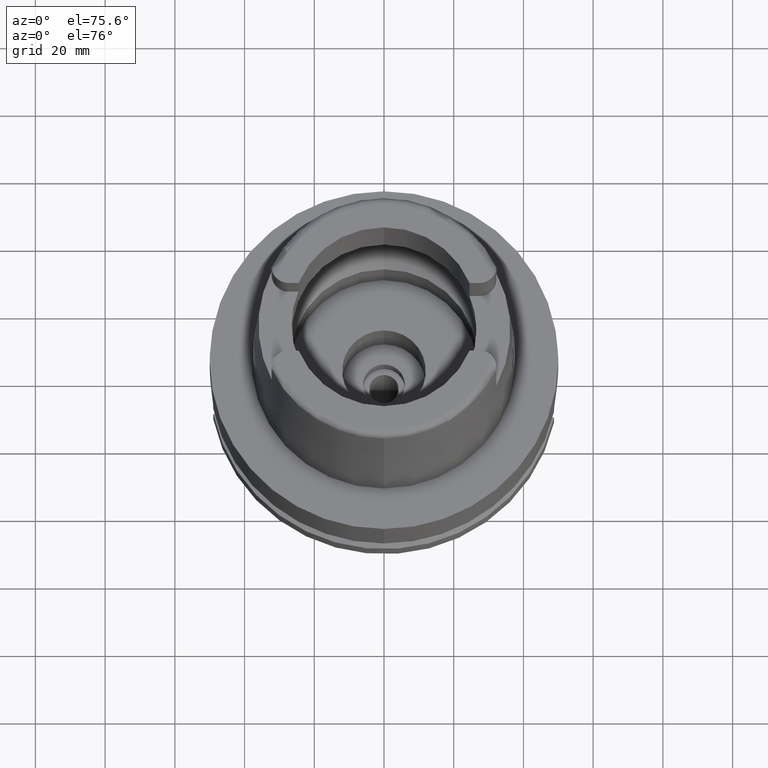
[diagram: clean part render]
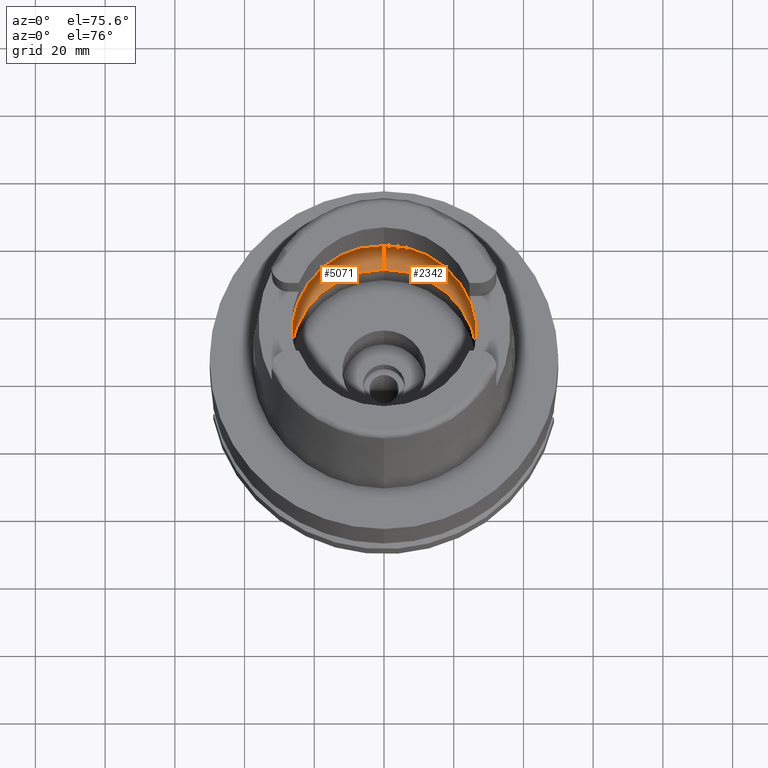
[diagram: same view with one multi-face feature highlighted, each face labeled with its STEP entity id]
A machine part, auxiliary view. The highlighted faces form ONE feature: a constant-radius fillet chain: 2 tangent blend faces with common blend radius 12 mm. The faces share edges in the B-rep.
Their STEP definitions:
[1] entity #2342 (Torus):
#111 = CARTESIAN_POINT ( 'NONE',  ( 31.40918884336000616, 2.390158196043999705, 9.496624327025999790 ) ) ;
#149 = CARTESIAN_POINT ( 'NONE',  ( 0.0000000000000000000, 0.0000000000000000000, 9.496624327025999790 ) ) ;
#151 = CARTESIAN_POINT ( 'NONE',  ( 0.0000000000000000000, 26.89999999999999858, 0.04993178413041000213 ) ) ;
#337 = AXIS2_PLACEMENT_3D ( 'NONE', #4973, #3682, #1531 ) ;
#414 = AXIS2_PLACEMENT_3D ( 'NONE', #149, #4528, #4978 ) ;
#427 = CIRCLE ( 'NONE', #337, 31.49999999999998934 ) ;
#437 = CARTESIAN_POINT ( 'NONE',  ( 31.48971910754000447, 0.0000000000000000000, 9.000000000000000000 ) ) ;
#488 = CARTESIAN_POINT ( 'NONE',  ( 31.48971910753999026, -0.8697454017312684638, 8.999999999999998224 ) ) ;
#686 = AXIS2_PLACEMENT_3D ( 'NONE', #2754, #3653, #4950 ) ;
#802 = EDGE_CURVE ( 'NONE', #5139, #970, #427, .T. ) ;
#970 = VERTEX_POINT ( 'NONE', #4045 ) ;
#1090 = VERTEX_POINT ( 'NONE', #111 ) ;
#1138 = CARTESIAN_POINT ( 'NONE',  ( 31.48971910753999026, 0.8697454017787721314, 9.000000000000001776 ) ) ;
#1197 = CARTESIAN_POINT ( 'NONE',  ( 31.48971910754000447, 0.0000000000000000000, 9.000000000000000000 ) ) ;
#1209 = VERTEX_POINT ( 'NONE', #2869 ) ;
#1305 = DIRECTION ( 'NONE',  ( 0.0000000000000000000, 0.0000000000000000000, 1.000000000000000000 ) ) ;
#1312 = CIRCLE ( 'NONE', #2216, 31.50000000000000000 ) ;
#1426 = CARTESIAN_POINT ( 'NONE',  ( 31.48971910754000447, 0.0000000000000000000, 9.000000000000000000 ) ) ;
#1445 = EDGE_CURVE ( 'NONE', #3564, #1090, #1312, .T. ) ;
#1446 = ORIENTED_EDGE ( 'NONE', *, *, #4504, .F. ) ;
#1531 = DIRECTION ( 'NONE',  ( 0.9971171061384295209, -0.07587803796965221503, 0.0000000000000000000 ) ) ;
#1586 = CIRCLE ( 'NONE', #686, 11.99999999999999822 ) ;
#1894 = ORIENTED_EDGE ( 'NONE', *, *, #3830, .T. ) ;
#1920 = EDGE_CURVE ( 'NONE', #4275, #5139, #3529, .T. ) ;
#1950 = CIRCLE ( 'NONE', #4474, 11.99999999999999822 ) ;
#2015 = CARTESIAN_POINT ( 'NONE',  ( 31.40918884336000616, 2.390158196043999705, 9.496624327025999790 ) ) ;
#2148 = ORIENTED_EDGE ( 'NONE', *, *, #802, .F. ) ;
#2183 = CARTESIAN_POINT ( 'NONE',  ( 0.0000000000000000000, 0.0000000000000000000, 0.04993178413041000213 ) ) ;
#2216 = AXIS2_PLACEMENT_3D ( 'NONE', #3221, #2738, #4455 ) ;
#2253 = CARTESIAN_POINT ( 'NONE',  ( 31.46287568614665986, -1.684656699965325632, 9.190219625007294724 ) ) ;
#2339 = EDGE_CURVE ( 'NONE', #4079, #3564, #1586, .T. ) ;
#2342 = ADVANCED_FACE ( 'NONE', ( #4471 ), #2855, .F. ) ;
#2738 = DIRECTION ( 'NONE',  ( 0.0000000000000000000, 0.0000000000000000000, -1.000000000000000000 ) ) ;
#2754 = CARTESIAN_POINT ( 'NONE',  ( 0.0000000000000000000, 19.50000000000000000, 9.496624327025999790 ) ) ;
#2775 = ORIENTED_EDGE ( 'NONE', *, *, #2861, .F. ) ;
#2855 = TOROIDAL_SURFACE ( 'NONE', #414, 19.50000000000000000, 12.00000000000000000 ) ;
#2861 = EDGE_CURVE ( 'NONE', #1090, #4275, #3984, .T. ) ;
#2869 = CARTESIAN_POINT ( 'NONE',  ( 0.0000000000000000000, -26.89999999999999858, 0.04993178413040000319 ) ) ;
#2942 = CARTESIAN_POINT ( 'NONE',  ( 0.0000000000000000000, -19.50000000000000000, 9.496624327025999790 ) ) ;
#3104 = ORIENTED_EDGE ( 'NONE', *, *, #1445, .F. ) ;
#3124 = CARTESIAN_POINT ( 'NONE',  ( 31.40918884336000616, -2.390158196043999705, 9.496624327025999790 ) ) ;
#3221 = CARTESIAN_POINT ( 'NONE',  ( 0.0000000000000000000, 0.0000000000000000000, 9.496624327025999790 ) ) ;
#3529 = B_SPLINE_CURVE_WITH_KNOTS ( 'NONE', 3,
 ( #1426, #488, #2253, #3124 ),
 .UNSPECIFIED., .F., .F.,
 ( 4, 4 ),
 ( 0.0000000000000000000, 1.000000000000000000 ),
 .UNSPECIFIED. ) ;
#3564 = VERTEX_POINT ( 'NONE', #3975 ) ;
#3653 = DIRECTION ( 'NONE',  ( 1.000000000000000000, 0.0000000000000000000, 0.0000000000000000000 ) ) ;
#3682 = DIRECTION ( 'NONE',  ( 0.0000000000000000000, 0.0000000000000000000, -1.000000000000000000 ) ) ;
#3819 = DIRECTION ( 'NONE',  ( 0.0000000000000000000, -1.000000000000000000, 0.0000000000000000000 ) ) ;
#3830 = EDGE_CURVE ( 'NONE', #1209, #970, #1950, .T. ) ;
#3836 = DIRECTION ( 'NONE',  ( -1.000000000000000000, 0.0000000000000000000, 0.0000000000000000000 ) ) ;
#3975 = CARTESIAN_POINT ( 'NONE',  ( 0.0000000000000000000, 31.50000000000000000, 9.496624327025999790 ) ) ;
#3984 = B_SPLINE_CURVE_WITH_KNOTS ( 'NONE', 3,
 ( #2015, #4633, #1138, #1197 ),
 .UNSPECIFIED., .F., .F.,
 ( 4, 4 ),
 ( 0.0000000000000000000, 1.000000000000000000 ),
 .UNSPECIFIED. ) ;
#4026 = CIRCLE ( 'NONE', #5475, 26.89999999999999858 ) ;
#4045 = CARTESIAN_POINT ( 'NONE',  ( 0.0000000000000000000, -31.50000000000000000, 9.496624327025999790 ) ) ;
#4079 = VERTEX_POINT ( 'NONE', #151 ) ;
#4275 = VERTEX_POINT ( 'NONE', #437 ) ;
#4455 = DIRECTION ( 'NONE',  ( 0.0000000000000000000, 1.000000000000000000, 0.0000000000000000000 ) ) ;
#4471 = FACE_OUTER_BOUND ( 'NONE', #5289, .T. ) ;
#4474 = AXIS2_PLACEMENT_3D ( 'NONE', #2942, #3836, #5556 ) ;
#4504 = EDGE_CURVE ( 'NONE', #1209, #4079, #4026, .T. ) ;
#4528 = DIRECTION ( 'NONE',  ( 0.0000000000000000000, 0.0000000000000000000, 1.000000000000000000 ) ) ;
#4633 = CARTESIAN_POINT ( 'NONE',  ( 31.46287568614665986, 1.684656700008886121, 9.190219625026216477 ) ) ;
#4950 = DIRECTION ( 'NONE',  ( 0.0000000000000000000, 0.6166666666667049990, -0.7872243785746061429 ) ) ;
#4973 = CARTESIAN_POINT ( 'NONE',  ( 0.0000000000000000000, 0.0000000000000000000, 9.496624327025999790 ) ) ;
#4978 = DIRECTION ( 'NONE',  ( 0.0000000000000000000, 1.000000000000000000, 0.0000000000000000000 ) ) ;
#5005 = CARTESIAN_POINT ( 'NONE',  ( 31.40918884336000616, -2.390158196043999705, 9.496624327025999790 ) ) ;
#5006 = ORIENTED_EDGE ( 'NONE', *, *, #2339, .F. ) ;
#5139 = VERTEX_POINT ( 'NONE', #5005 ) ;
#5260 = ORIENTED_EDGE ( 'NONE', *, *, #1920, .F. ) ;
#5289 = EDGE_LOOP ( 'NONE', ( #2775, #3104, #5006, #1446, #1894, #2148, #5260 ) ) ;
#5475 = AXIS2_PLACEMENT_3D ( 'NONE', #2183, #1305, #3819 ) ;
#5556 = DIRECTION ( 'NONE',  ( 0.0000000000000000000, -0.6166666666667049990, -0.7872243785746061429 ) ) ;
[2] entity #5071 (Torus):
#151 = CARTESIAN_POINT ( 'NONE',  ( 0.0000000000000000000, 26.89999999999999858, 0.04993178413041000213 ) ) ;
#200 = CARTESIAN_POINT ( 'NONE',  ( -31.46287568614665986, 1.684656699916923683, 9.190219624986275093 ) ) ;
#241 = VERTEX_POINT ( 'NONE', #2449 ) ;
#394 = DIRECTION ( 'NONE',  ( 0.0000000000000000000, -1.000000000000000000, 0.0000000000000000000 ) ) ;
#502 = CIRCLE ( 'NONE', #3658, 26.89999999999999858 ) ;
#618 = B_SPLINE_CURVE_WITH_KNOTS ( 'NONE', 3,
 ( #646, #4826, #4936, #3145 ),
 .UNSPECIFIED., .F., .F.,
 ( 4, 4 ),
 ( 0.0000000000000000000, 1.000000000000000000 ),
 .UNSPECIFIED. ) ;
#629 = CARTESIAN_POINT ( 'NONE',  ( -31.48971910754000447, 0.0000000000000000000, 9.000000000000000000 ) ) ;
#646 = CARTESIAN_POINT ( 'NONE',  ( -31.40918884336000616, -2.390158196043999705, 9.496624327025999790 ) ) ;
#686 = AXIS2_PLACEMENT_3D ( 'NONE', #2754, #3653, #4950 ) ;
#687 = FACE_OUTER_BOUND ( 'NONE', #4054, .T. ) ;
#970 = VERTEX_POINT ( 'NONE', #4045 ) ;
#999 = DIRECTION ( 'NONE',  ( 0.0000000000000000000, 0.0000000000000000000, 1.000000000000000000 ) ) ;
#1053 = CARTESIAN_POINT ( 'NONE',  ( 0.0000000000000000000, 0.0000000000000000000, 9.496624327025999790 ) ) ;
#1080 = ORIENTED_EDGE ( 'NONE', *, *, #2696, .F. ) ;
#1209 = VERTEX_POINT ( 'NONE', #2869 ) ;
#1247 = TOROIDAL_SURFACE ( 'NONE', #4397, 19.50000000000000000, 12.00000000000000000 ) ;
#1492 = AXIS2_PLACEMENT_3D ( 'NONE', #2633, #3479, #394 ) ;
#1580 = CIRCLE ( 'NONE', #2306, 31.49999999999998934 ) ;
#1586 = CIRCLE ( 'NONE', #686, 11.99999999999999822 ) ;
#1663 = VERTEX_POINT ( 'NONE', #2524 ) ;
#1835 = ORIENTED_EDGE ( 'NONE', *, *, #5073, .F. ) ;
#1950 = CIRCLE ( 'NONE', #4474, 11.99999999999999822 ) ;
#2205 = EDGE_CURVE ( 'NONE', #1663, #3564, #1580, .T. ) ;
#2306 = AXIS2_PLACEMENT_3D ( 'NONE', #5156, #3012, #4721 ) ;
#2339 = EDGE_CURVE ( 'NONE', #4079, #3564, #1586, .T. ) ;
#2353 = DIRECTION ( 'NONE',  ( 0.0000000000000000000, 1.000000000000000000, 0.0000000000000000000 ) ) ;
#2408 = ORIENTED_EDGE ( 'NONE', *, *, #2205, .F. ) ;
#2449 = CARTESIAN_POINT ( 'NONE',  ( -31.40918884336000616, -2.390158196043999705, 9.496624327025999790 ) ) ;
#2524 = CARTESIAN_POINT ( 'NONE',  ( -31.40918884336000616, 2.390158196043999705, 9.496624327025999790 ) ) ;
#2566 = VERTEX_POINT ( 'NONE', #5502 ) ;
#2633 = CARTESIAN_POINT ( 'NONE',  ( 0.0000000000000000000, 0.0000000000000000000, 9.496624327025999790 ) ) ;
#2696 = EDGE_CURVE ( 'NONE', #4079, #1209, #502, .T. ) ;
#2754 = CARTESIAN_POINT ( 'NONE',  ( 0.0000000000000000000, 19.50000000000000000, 9.496624327025999790 ) ) ;
#2785 = DIRECTION ( 'NONE',  ( 0.0000000000000000000, 0.0000000000000000000, 1.000000000000000000 ) ) ;
#2869 = CARTESIAN_POINT ( 'NONE',  ( 0.0000000000000000000, -26.89999999999999858, 0.04993178413040000319 ) ) ;
#2928 = EDGE_CURVE ( 'NONE', #970, #241, #5292, .T. ) ;
#2942 = CARTESIAN_POINT ( 'NONE',  ( 0.0000000000000000000, -19.50000000000000000, 9.496624327025999790 ) ) ;
#3012 = DIRECTION ( 'NONE',  ( 0.0000000000000000000, 0.0000000000000000000, -1.000000000000000000 ) ) ;
#3057 = B_SPLINE_CURVE_WITH_KNOTS ( 'NONE', 3,
 ( #629, #4071, #200, #5371 ),
 .UNSPECIFIED., .F., .F.,
 ( 4, 4 ),
 ( 0.0000000000000000000, 1.000000000000000000 ),
 .UNSPECIFIED. ) ;
#3145 = CARTESIAN_POINT ( 'NONE',  ( -31.48971910754000447, 0.0000000000000000000, 9.000000000000000000 ) ) ;
#3166 = EDGE_CURVE ( 'NONE', #241, #2566, #618, .T. ) ;
#3479 = DIRECTION ( 'NONE',  ( 0.0000000000000000000, 0.0000000000000000000, -1.000000000000000000 ) ) ;
#3564 = VERTEX_POINT ( 'NONE', #3975 ) ;
#3653 = DIRECTION ( 'NONE',  ( 1.000000000000000000, 0.0000000000000000000, 0.0000000000000000000 ) ) ;
#3658 = AXIS2_PLACEMENT_3D ( 'NONE', #5366, #999, #2353 ) ;
#3830 = EDGE_CURVE ( 'NONE', #1209, #970, #1950, .T. ) ;
#3836 = DIRECTION ( 'NONE',  ( -1.000000000000000000, 0.0000000000000000000, 0.0000000000000000000 ) ) ;
#3975 = CARTESIAN_POINT ( 'NONE',  ( 0.0000000000000000000, 31.50000000000000000, 9.496624327025999790 ) ) ;
#4018 = ORIENTED_EDGE ( 'NONE', *, *, #2339, .T. ) ;
#4045 = CARTESIAN_POINT ( 'NONE',  ( 0.0000000000000000000, -31.50000000000000000, 9.496624327025999790 ) ) ;
#4054 = EDGE_LOOP ( 'NONE', ( #4806, #4499, #1080, #4018, #2408, #1835, #5374 ) ) ;
#4071 = CARTESIAN_POINT ( 'NONE',  ( -31.48971910754000447, 0.8697454016785111097, 9.000000000000001776 ) ) ;
#4079 = VERTEX_POINT ( 'NONE', #151 ) ;
#4397 = AXIS2_PLACEMENT_3D ( 'NONE', #1053, #2785, #4497 ) ;
#4474 = AXIS2_PLACEMENT_3D ( 'NONE', #2942, #3836, #5556 ) ;
#4497 = DIRECTION ( 'NONE',  ( 0.0000000000000000000, 1.000000000000000000, 0.0000000000000000000 ) ) ;
#4499 = ORIENTED_EDGE ( 'NONE', *, *, #3830, .F. ) ;
#4721 = DIRECTION ( 'NONE',  ( -0.9971171061384295209, 0.07587803796965221503, 0.0000000000000000000 ) ) ;
#4806 = ORIENTED_EDGE ( 'NONE', *, *, #2928, .F. ) ;
#4826 = CARTESIAN_POINT ( 'NONE',  ( -31.46287568614665986, -1.684656700028137832, 9.190219625034576012 ) ) ;
#4936 = CARTESIAN_POINT ( 'NONE',  ( -31.48971910754000447, -0.8697454017997489073, 8.999999999999998224 ) ) ;
#4950 = DIRECTION ( 'NONE',  ( 0.0000000000000000000, 0.6166666666667049990, -0.7872243785746061429 ) ) ;
#5071 = ADVANCED_FACE ( 'NONE', ( #687 ), #1247, .F. ) ;
#5073 = EDGE_CURVE ( 'NONE', #2566, #1663, #3057, .T. ) ;
#5156 = CARTESIAN_POINT ( 'NONE',  ( 0.0000000000000000000, 0.0000000000000000000, 9.496624327025999790 ) ) ;
#5292 = CIRCLE ( 'NONE', #1492, 31.50000000000000000 ) ;
#5366 = CARTESIAN_POINT ( 'NONE',  ( 0.0000000000000000000, 0.0000000000000000000, 0.04993178413040000319 ) ) ;
#5371 = CARTESIAN_POINT ( 'NONE',  ( -31.40918884336000616, 2.390158196043999705, 9.496624327025999790 ) ) ;
#5374 = ORIENTED_EDGE ( 'NONE', *, *, #3166, .F. ) ;
#5502 = CARTESIAN_POINT ( 'NONE',  ( -31.48971910754000447, 0.0000000000000000000, 9.000000000000000000 ) ) ;
#5556 = DIRECTION ( 'NONE',  ( 0.0000000000000000000, -0.6166666666667049990, -0.7872243785746061429 ) ) ;